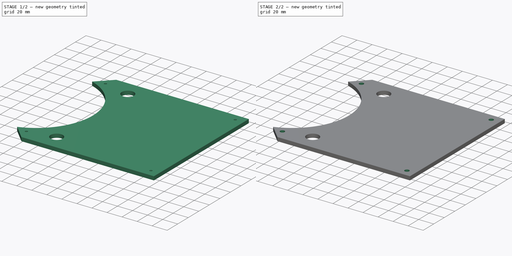
[diagram: build sequence overview — one tinted view per stage of 2, left to right]
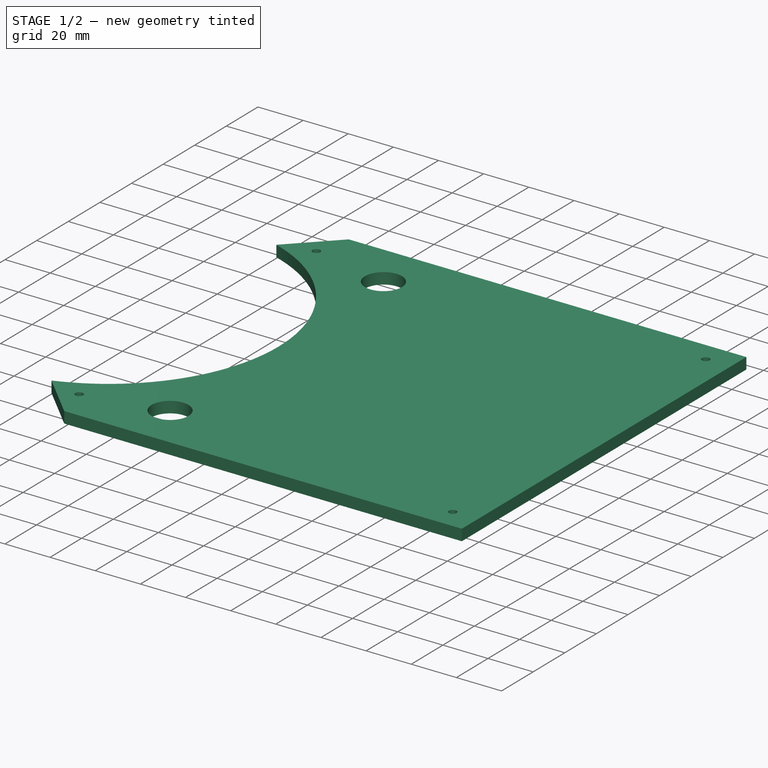
[diagram: stage 1 of 2 — iso view after this stage's code; geometry added in this stage tinted green]
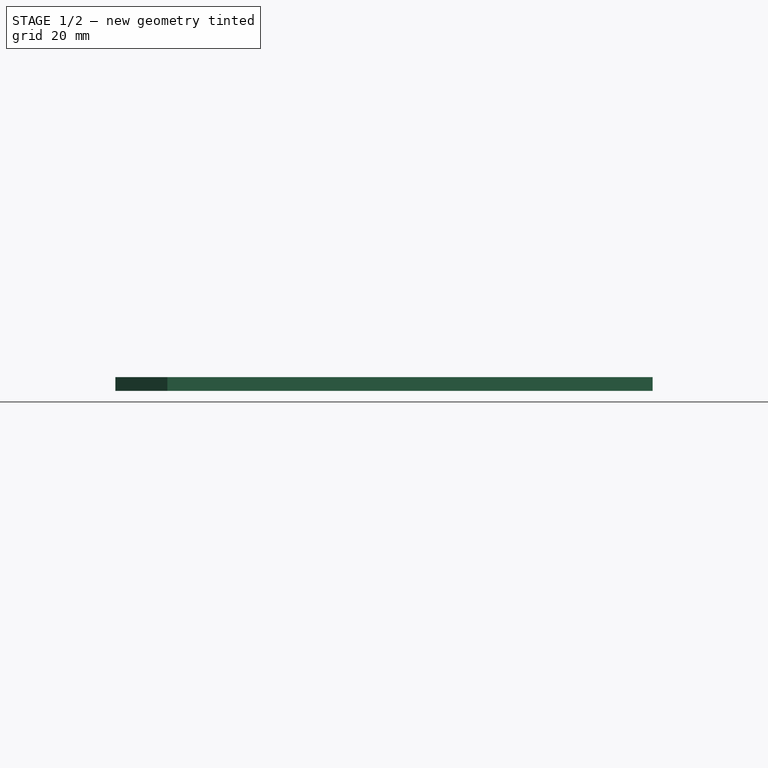
[diagram: stage 1 of 2 — front view after this stage's code; geometry added in this stage tinted green]
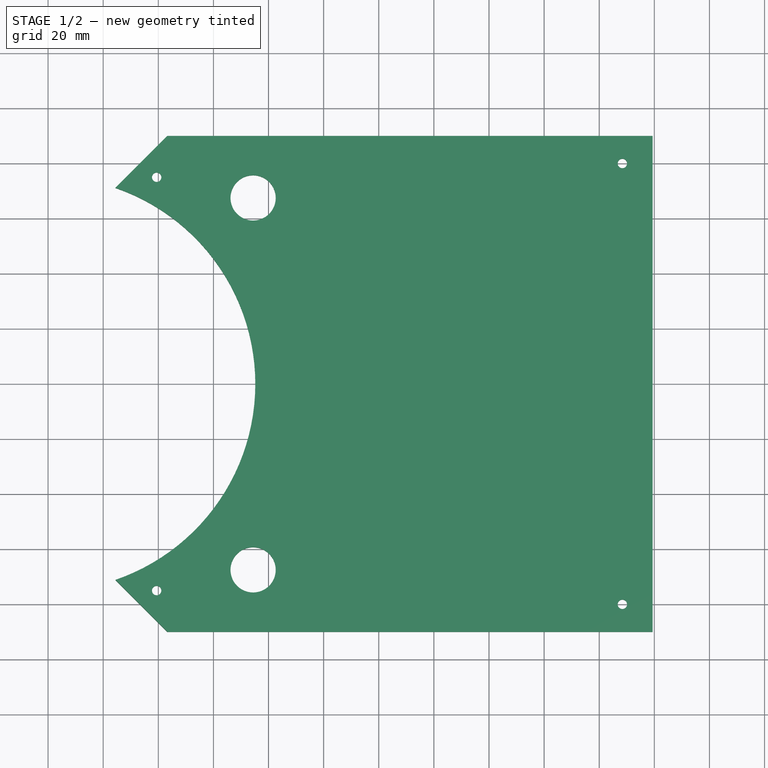
[diagram: stage 1 of 2 — top view after this stage's code; geometry added in this stage tinted green]
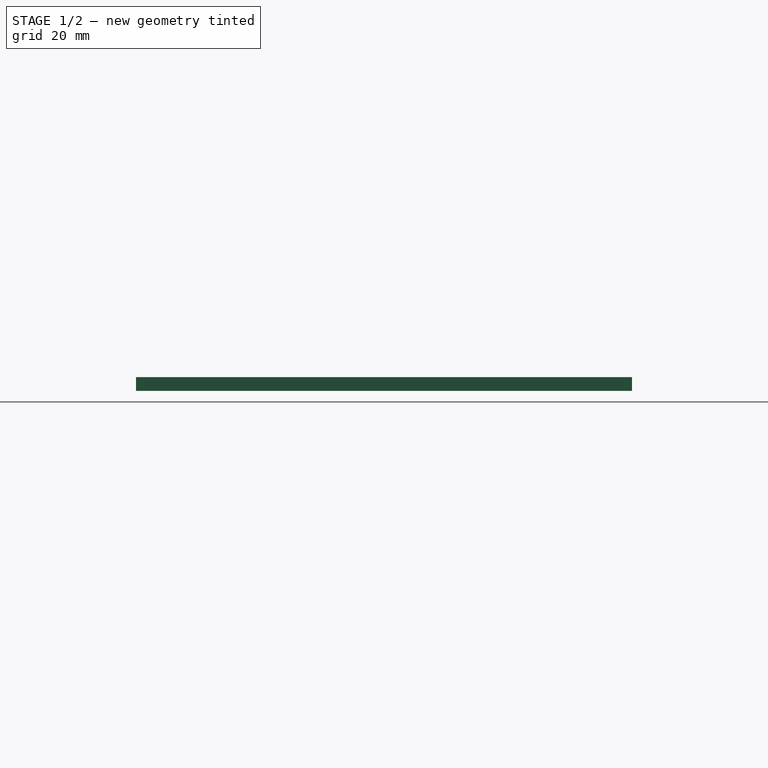
[diagram: stage 1 of 2 — right view after this stage's code; geometry added in this stage tinted green]
FCSTD DOCUMENT  (FreeCAD 0.19R24276 (Git))
Label: BaseBoxCover
License: All rights reserved
LicenseURL: http://en.wikipedia.org/wiki/All_rights_reserved
objects: PartDesign::Line×4, Sketcher::SketchObject×3, PartDesign::CoordinateSystem×3, PartDesign::Pocket×2, PartDesign::Pad×1, Spreadsheet::Sheet×1, PartDesign::Body×1
note: 17 computed .brp shape members not serialized (recipe doc carries the construction recipe); baked Part::Feature solids carry a one-line shape summary decoded from their .brp

FEATURE [Sketcher::SketchObject] Sketch
  FullyConstrained = true
  MapMode = 5
  Support = -> [XY_Plane]
  sketch-geometry (6):
    g0: ArcOfCircle CenterX=0 CenterY=0 CenterZ=0 NormalX=0 NormalY=0 NormalZ=1 AngleXU=0 Radius=75.2 StartAngle=5.04284 EndAngle=7.52353
    g1: LineSegment StartX=24.4 StartY=71.1314 StartZ=0 EndX=43.2686 EndY=90 EndZ=0
    g2: LineSegment StartX=43.2686 StartY=90 StartZ=0 EndX=219.4 EndY=90 EndZ=0
    g3: LineSegment StartX=219.4 StartY=90 StartZ=0 EndX=219.4 EndY=-90 EndZ=0
    g4: LineSegment StartX=219.4 StartY=-90 StartZ=0 EndX=43.2686 EndY=-90 EndZ=0
    g5: LineSegment StartX=43.2686 StartY=-90 StartZ=0 EndX=24.4 EndY=-71.1314 EndZ=0
  constraints (17):
    c: Coincident(g0,g1)
    c: Coincident(g1,g2)
    c: Horizontal(g2)
    c: Coincident(g2,g3)
    c: Vertical(g3)
    c: Coincident(g3,g4)
    c: Horizontal(g4)
    c: Coincident(g4,g5)
    c: Coincident(g5,g0)
    c: Symmetric(g4,g1,g-1)
    c: Angle(g4,g5) = 2.35619
    c: DistanceY(g3,g3) = 180
    c: DistanceX(g0,g3) = 195
    c: Radius(g0) = 75.2
    c: Angle(g1,g2) = 2.35619
    c: Coincident(g0,g-1)
    c: DistanceX(g0,g0) = 24.4
FEATURE [PartDesign::Pad] Pad
  Direction = (1,1,1)
  Length = 5
  Length2 = 100
  Profile = -> Sketch
  Refine = true
  Type = 0
FEATURE [Sketcher::SketchObject] Sketch001
  ExternalGeometry = -> [Pad]
  FullyConstrained = true
  MapMode = 5
  Placement = pos=(0,0,5) rot=(0,0,1;0rad)
  Support = -> [Pad]
  expr: Constraints[4] = Spreadsheet.M3BoltBodyRadius
  expr: Constraints[13] = Spreadsheet.ButtonBodyRadius
  sketch-geometry (6):
    g0: Circle CenterX=39.4 CenterY=75 CenterZ=0 NormalX=0 NormalY=0 NormalZ=1 AngleXU=0 Radius=1.7
    g1: Circle CenterX=39.4 CenterY=-75 CenterZ=0 NormalX=0 NormalY=0 NormalZ=1 AngleXU=0 Radius=1.7
    g2: Circle CenterX=208.4 CenterY=-80 CenterZ=0 NormalX=0 NormalY=0 NormalZ=1 AngleXU=0 Radius=1.7
    g3: Circle CenterX=208.4 CenterY=80 CenterZ=0 NormalX=0 NormalY=0 NormalZ=1 AngleXU=0 Radius=1.7
    g4: Circle CenterX=74.4 CenterY=67.5 CenterZ=0 NormalX=0 NormalY=0 NormalZ=1 AngleXU=0 Radius=8.2
    g5: Circle CenterX=74.4 CenterY=-67.5 CenterZ=0 NormalX=0 NormalY=0 NormalZ=1 AngleXU=0 Radius=8.2
  constraints (15):
    c: Equal(g3,g0)
    c: Equal(g0,g1)
    c: Equal(g1,g2)
    c: DistanceX(g2,g-3) = 11
    c: Radius(g2) = 1.7
    c: Symmetric(g2,g3,g-1)
    c: Symmetric(g0,g1,g-1)
    c: DistanceY(g2,g3) = 160
    c: DistanceY(g1,g0) = 150
    c: DistanceX(g1,g-3) = 180
    c: Symmetric(g5,g4,g-1)
    c: DistanceY(g5,g4) = 135
    c: Equal(g5,g4)
    c: Radius(g5) = 8.2
    c: DistanceX(g5,g-3) = 145
FEATURE [Spreadsheet::Sheet] Spreadsheet
  cells = A2=M3BoltBodyRadius; B2(M3BoltBodyRadius)=1.7; A3=M3BoltHeadRadius; B3(M3BoltHeadRadius)=2.95; A4=ButtonBodyRadius; B4(ButtonBodyRadius)=8.199999999999999
FEATURE [PartDesign::Pocket] Pocket
  BaseFeature = -> Pad
  Length = 5
  Length2 = 100
  Profile = -> Sketch001
  Refine = true
  Type = 1
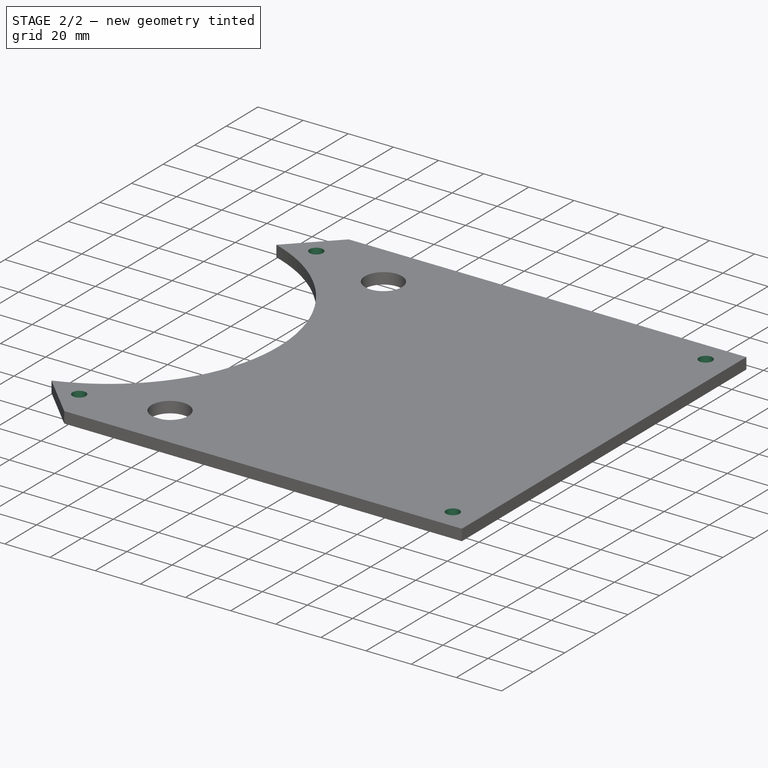
[diagram: stage 2 of 2 — iso view after this stage's code; geometry added in this stage tinted green]
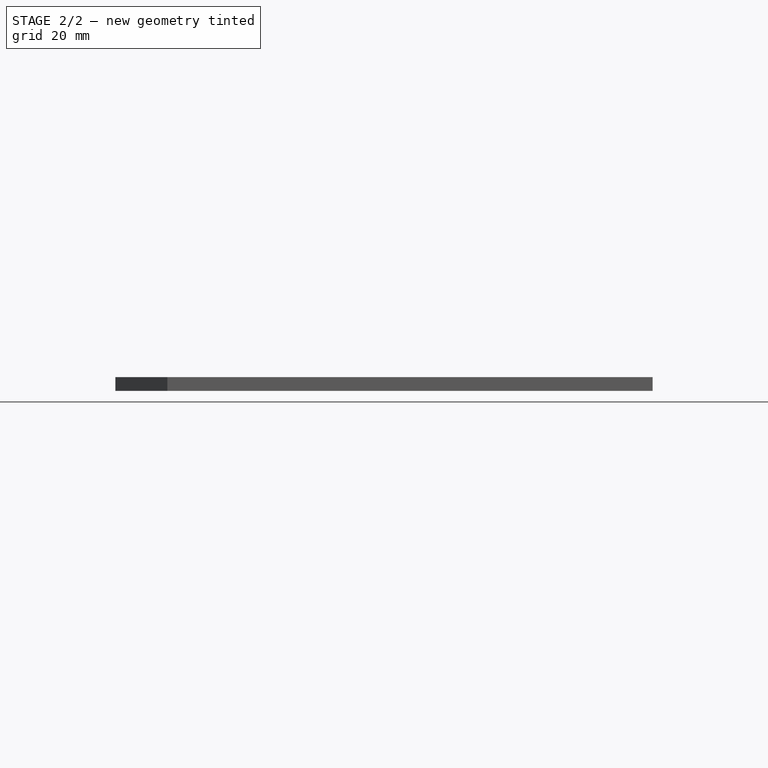
[diagram: stage 2 of 2 — front view after this stage's code; geometry added in this stage tinted green]
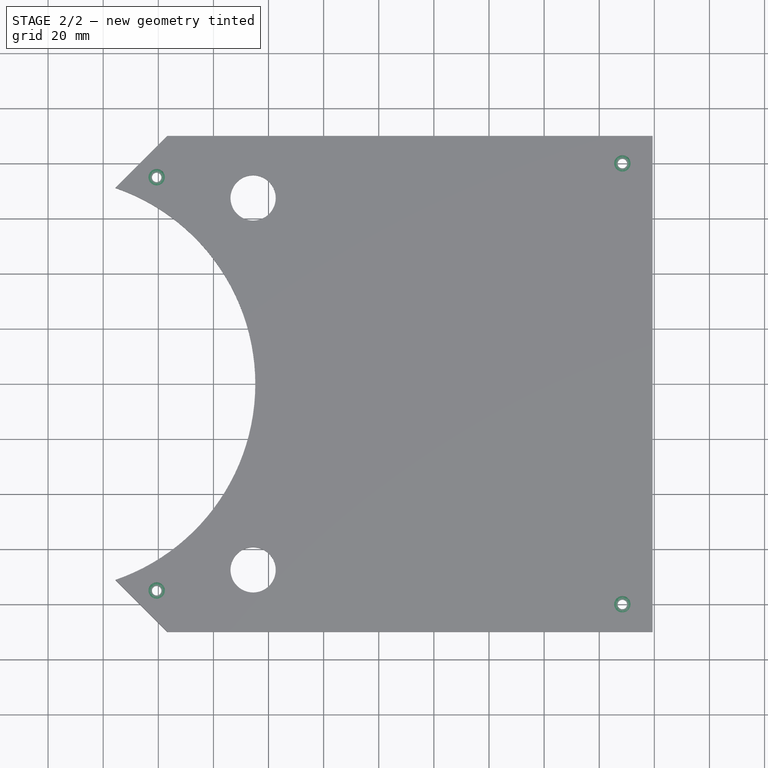
[diagram: stage 2 of 2 — top view after this stage's code; geometry added in this stage tinted green]
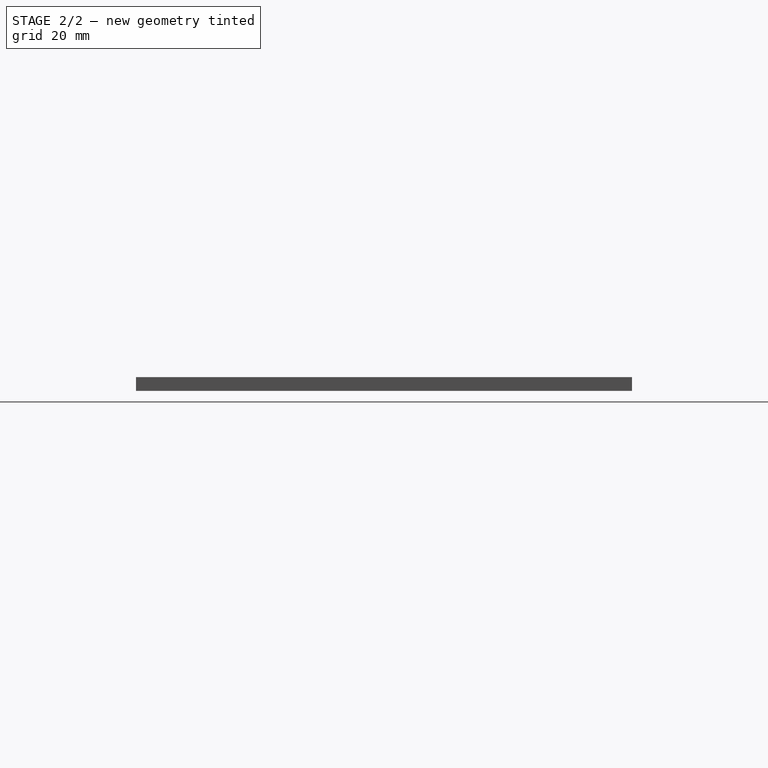
[diagram: stage 2 of 2 — right view after this stage's code; geometry added in this stage tinted green]
FEATURE [Sketcher::SketchObject] Sketch002
  ExternalGeometry = -> [Pocket]
  FullyConstrained = true
  MapMode = 5
  Placement = pos=(0,0,5) rot=(0,0,1;0rad)
  Support = -> [Pocket]
  expr: Constraints[7] = Spreadsheet.M3BoltHeadRadius
  sketch-geometry (4):
    g0: Circle CenterX=39.4 CenterY=-75 CenterZ=0 NormalX=0 NormalY=0 NormalZ=1 AngleXU=0 Radius=2.95
    g1: Circle CenterX=208.4 CenterY=-80 CenterZ=0 NormalX=0 NormalY=0 NormalZ=1 AngleXU=0 Radius=2.95
    g2: Circle CenterX=39.4 CenterY=75 CenterZ=0 NormalX=0 NormalY=0 NormalZ=1 AngleXU=0 Radius=2.95
    g3: Circle CenterX=208.4 CenterY=80 CenterZ=0 NormalX=0 NormalY=0 NormalZ=1 AngleXU=0 Radius=2.95
  constraints (8):
    c: Coincident(g0,g-6)
    c: Coincident(g1,g-4)
    c: Coincident(g2,g-3)
    c: Coincident(g3,g-5)
    c: Equal(g3,g2)
    c: Equal(g2,g0)
    c: Equal(g0,g1)
    c: Radius(g1) = 2.95
FEATURE [PartDesign::Pocket] Pocket001
  BaseFeature = -> Pocket
  Length = 3.5
  Length2 = 100
  Profile = -> Sketch002
  Refine = true
  Type = 0
FEATURE [PartDesign::CoordinateSystem] LCS_Bot
  AttacherType = Attacher::AttachEngine3D
  MapMode = 45
  Placement = pos=(123.9,5.3e-15,0) rot=(0,0,1;1.5708rad)
  Support = -> [Pocket001]
FEATURE [PartDesign::CoordinateSystem] LCS_PushButton1
  AttacherType = Attacher::AttachEngine3D
  MapMode = 11
  Placement = pos=(74.4,-67.5,5) rot=(0,0,1;1.5708rad)
  Support = -> [Pocket001]
FEATURE [PartDesign::CoordinateSystem] LCS_PushButton2
  AttacherType = Attacher::AttachEngine3D
  MapMode = 11
  Placement = pos=(74.4,67.5,5) rot=(0,0,1;1.5708rad)
  Support = -> [Pocket001]
FEATURE [PartDesign::Line] HoleAxis_1
  AttacherType = Attacher::AttachEngineLine
  Length = 4.79083
  MapMode = 19
  Placement = pos=(39.4,-75,1.5) rot=(0,0,1;0rad)
  ResizeMode = 1
  Support = -> [Pocket001]
FEATURE [PartDesign::Line] HoleAxis_2
  AttacherType = Attacher::AttachEngineLine
  Length = 4.79083
  MapMode = 19
  Placement = pos=(208.4,-80,1.5) rot=(0,0,1;0rad)
  ResizeMode = 1
  Support = -> [Pocket001]
FEATURE [PartDesign::Line] HoleAxis_3
  AttacherType = Attacher::AttachEngineLine
  Length = 4.79083
  MapMode = 19
  Placement = pos=(208.4,80,1.5) rot=(0,0,1;0rad)
  ResizeMode = 1
  Support = -> [Pocket001]
FEATURE [PartDesign::Line] HoleAxis_4
  AttacherType = Attacher::AttachEngineLine
  Length = 4.79083
  MapMode = 19
  Placement = pos=(39.4,75,1.5) rot=(0,0,1;0rad)
  ResizeMode = 1
  Support = -> [Pocket001]
FEATURE [PartDesign::Body] Body  label="BaseBoxCover"
  Group = -> [Sketch,Pad,Sketch001,Pocket,Sketch002,Pocket001,LCS_Bot,LCS_PushButton1,LCS_PushButton2,HoleAxis_1,HoleAxis_2,HoleAxis_3,HoleAxis_4]
  Origin = -> Origin
  Tip = -> Pocket001
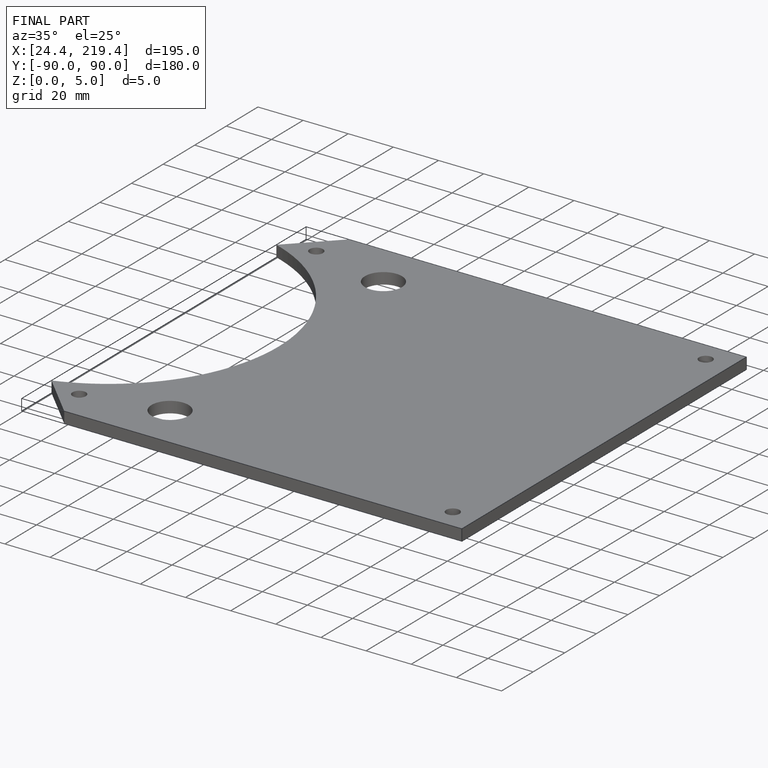
[diagram: finished part — iso view with bounding-box wireframe]
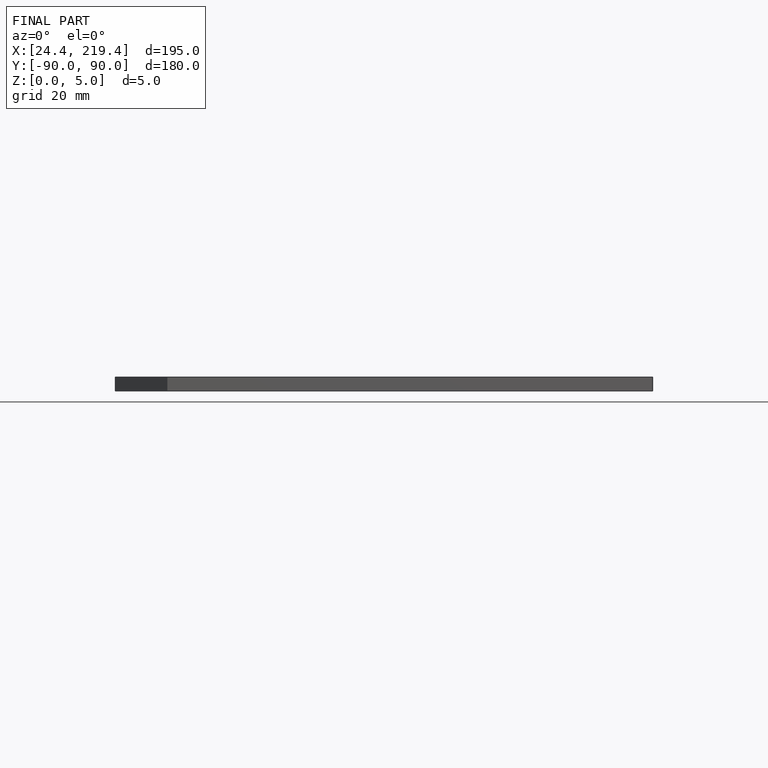
[diagram: finished part — front view with bounding-box wireframe]
